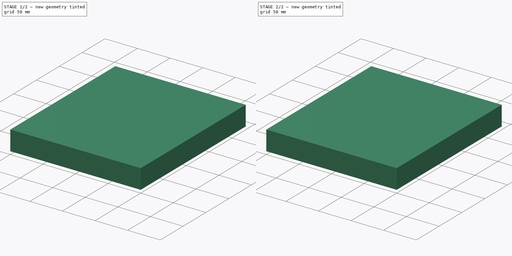
[diagram: build sequence overview — one tinted view per stage of 2, left to right]
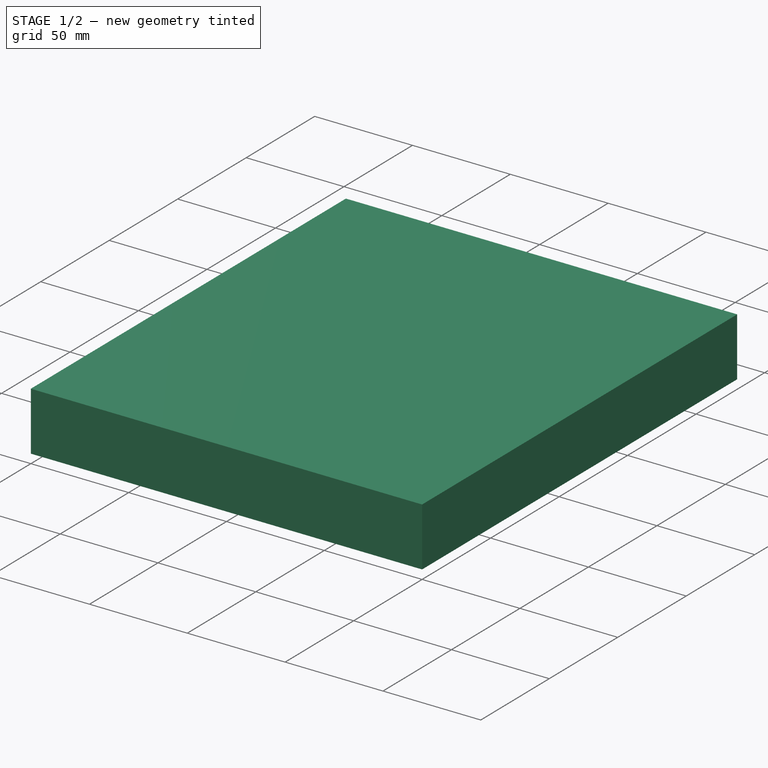
[diagram: stage 1 of 2 — iso view after this stage's code; geometry added in this stage tinted green]
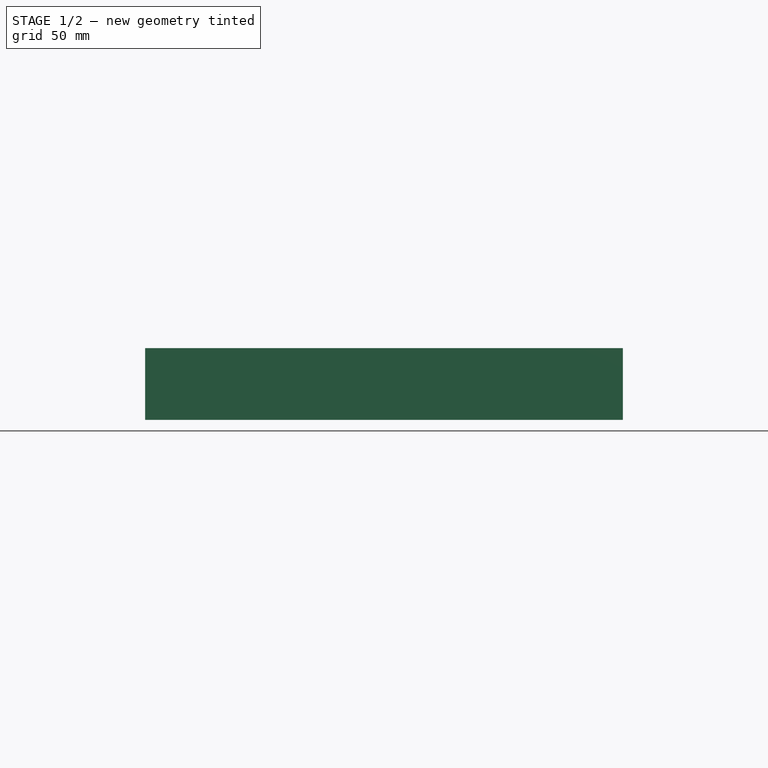
[diagram: stage 1 of 2 — front view after this stage's code; geometry added in this stage tinted green]
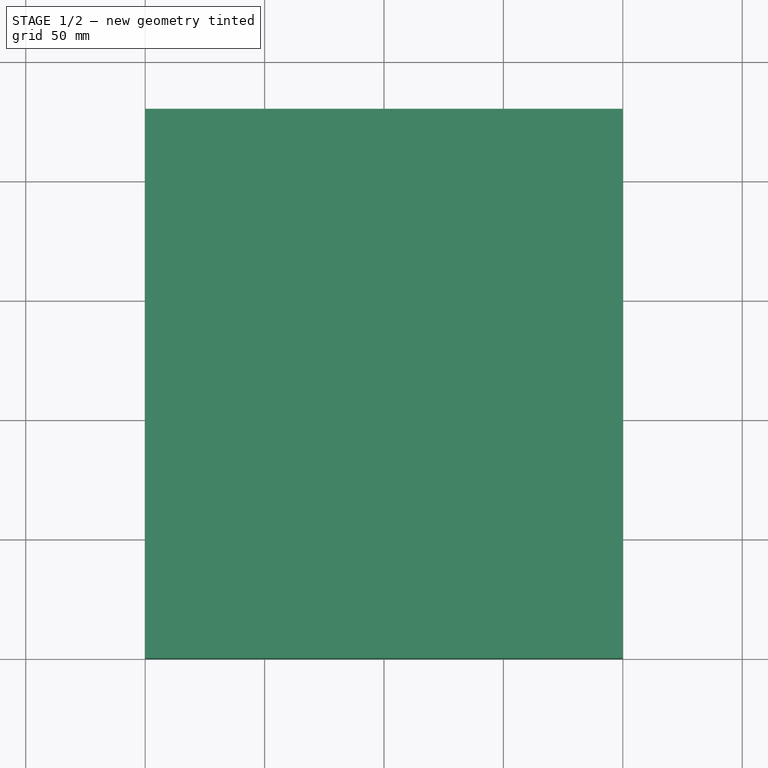
[diagram: stage 1 of 2 — top view after this stage's code; geometry added in this stage tinted green]
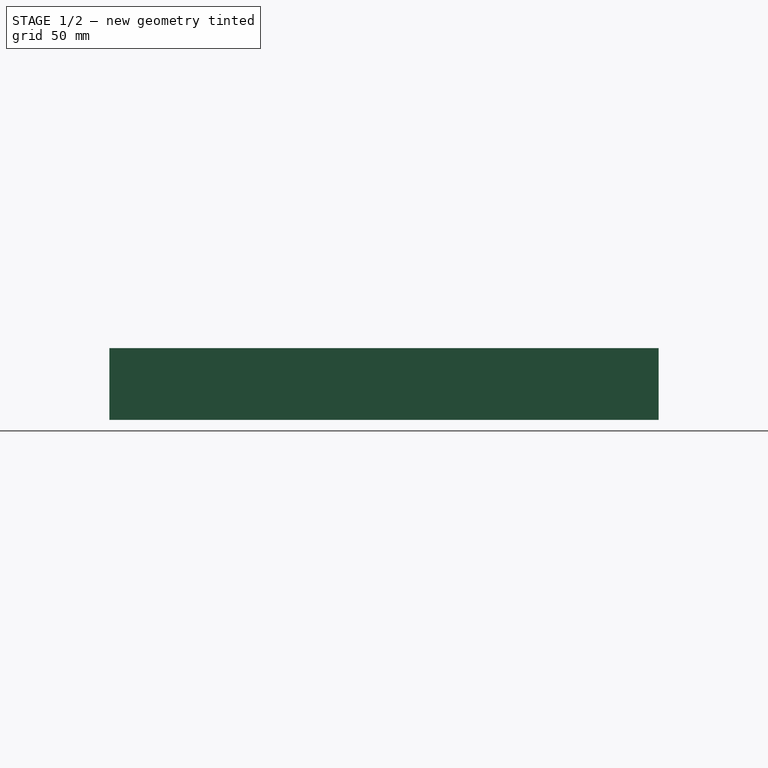
[diagram: stage 1 of 2 — right view after this stage's code; geometry added in this stage tinted green]
FCSTD DOCUMENT  (FreeCAD 0.19R24291 (Git))
Label: Binary_Clock
License: All rights reserved
LicenseURL: http://en.wikipedia.org/wiki/All_rights_reserved
objects: Part::Box×1, PartDesign::FeatureBase×1, Sketcher::SketchObject×1, PartDesign::Body×1
note: 4 computed .brp shape members not serialized (recipe doc carries the construction recipe); baked Part::Feature solids carry a one-line shape summary decoded from their .brp

FEATURE [Part::Box] Box  label="Cube"
  AttacherType = Attacher::AttachEngine3D
  Height = 30
  Length = 200
  Width = 230
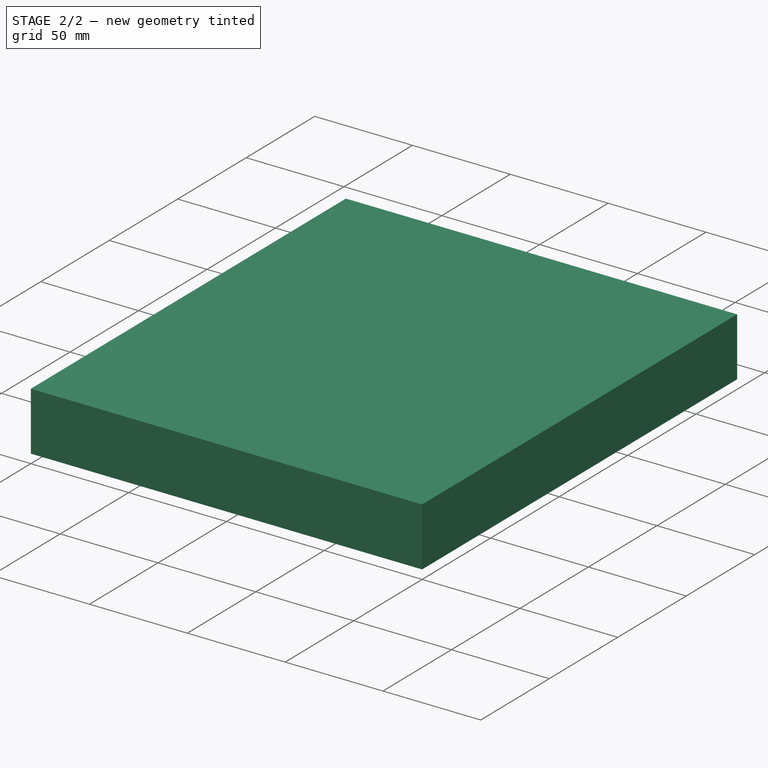
[diagram: stage 2 of 2 — iso view after this stage's code; geometry added in this stage tinted green]
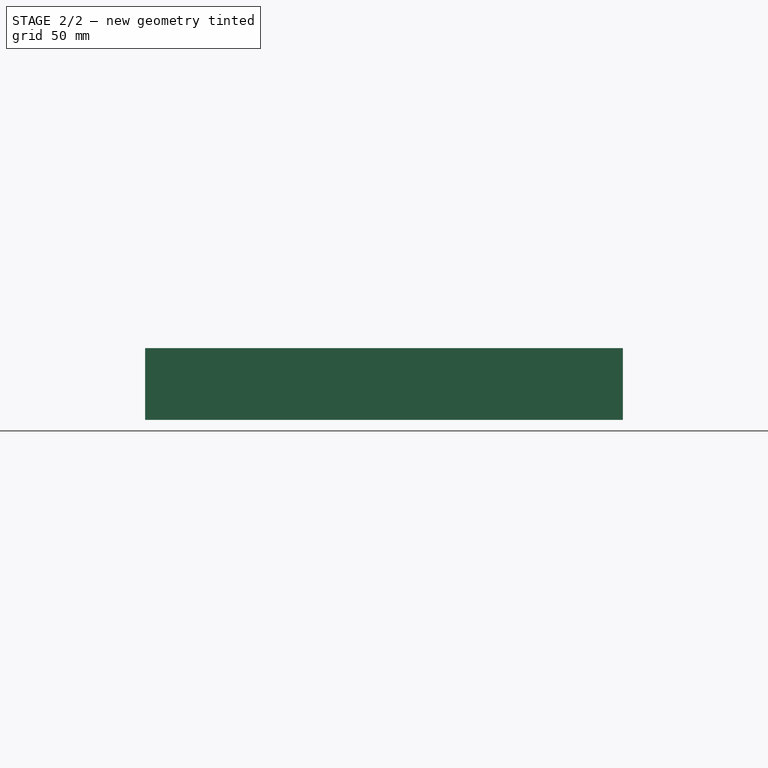
[diagram: stage 2 of 2 — front view after this stage's code; geometry added in this stage tinted green]
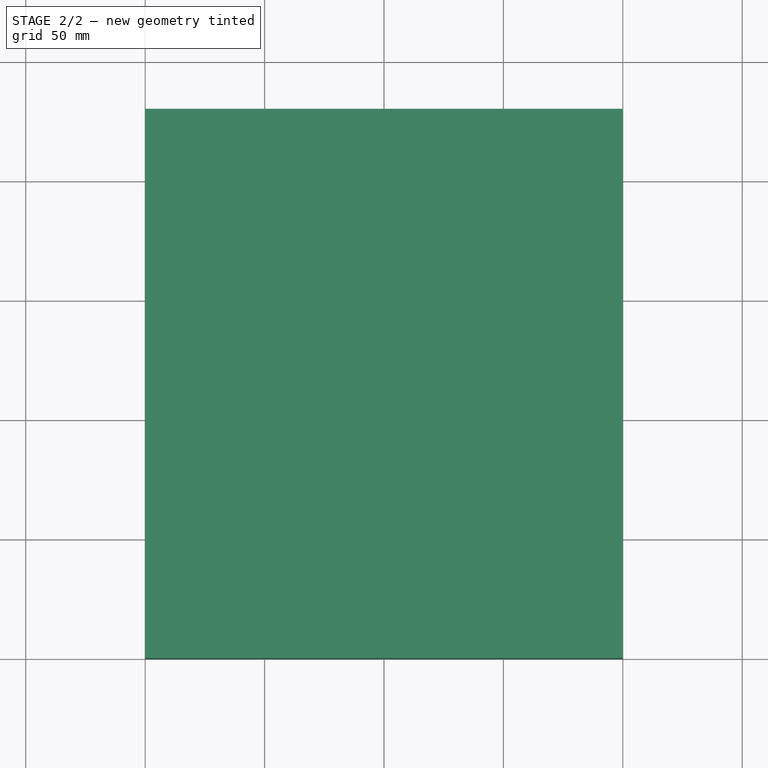
[diagram: stage 2 of 2 — top view after this stage's code; geometry added in this stage tinted green]
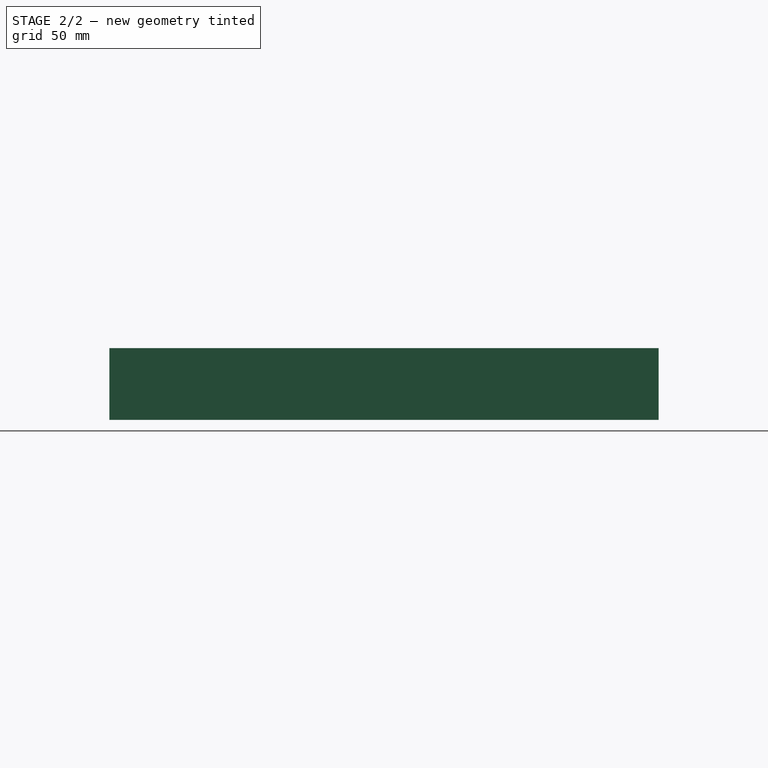
[diagram: stage 2 of 2 — right view after this stage's code; geometry added in this stage tinted green]
FEATURE [PartDesign::FeatureBase] BaseFeature
  BaseFeature = -> Box
FEATURE [Sketcher::SketchObject] Sketch
  FullyConstrained = false
  MapMode = 5
  Placement = pos=(0,0,30) rot=(0,0,1;0rad)
  Support = -> [BaseFeature]
  sketch-geometry (42):
    g0: LineSegment StartX=166.667 StartY=230 StartZ=0 EndX=166.667 EndY=0 EndZ=0
    g1: LineSegment StartX=133.333 StartY=230 StartZ=0 EndX=133.333 EndY=0 EndZ=0
    g2: LineSegment StartX=100 StartY=230 StartZ=0 EndX=100 EndY=0 EndZ=0
    g3: LineSegment StartX=66.6667 StartY=230 StartZ=0 EndX=66.6667 EndY=0 EndZ=0
    g4: LineSegment StartX=33.3333 StartY=230 StartZ=0 EndX=33.3333 EndY=0 EndZ=0
    g5: LineSegment StartX=0 StartY=230 StartZ=0 EndX=33.3333 EndY=230 EndZ=0
    g6: LineSegment StartX=33.3333 StartY=230 StartZ=0 EndX=66.6667 EndY=230 EndZ=0
    g7: LineSegment StartX=66.6667 StartY=230 StartZ=0 EndX=100 EndY=230 EndZ=0
    g8: LineSegment StartX=100 StartY=230 StartZ=0 EndX=133.333 EndY=230 EndZ=0
    g9: LineSegment StartX=133.333 StartY=230 StartZ=0 EndX=166.667 EndY=230 EndZ=0
    g10: LineSegment StartX=166.667 StartY=230 StartZ=0 EndX=200 EndY=230 EndZ=0
    g11: LineSegment StartX=200 StartY=230 StartZ=0 EndX=200 EndY=196.667 EndZ=0
    g12: LineSegment StartX=200 StartY=196.667 StartZ=0 EndX=200 EndY=163.333 EndZ=0
    g13: LineSegment StartX=200 StartY=163.333 StartZ=0 EndX=200 EndY=130 EndZ=0
    g14: LineSegment StartX=200 StartY=130 StartZ=0 EndX=200 EndY=96.6667 EndZ=0
    g15: LineSegment StartX=200 StartY=96.6667 StartZ=0 EndX=200 EndY=63.3333 EndZ=0
    g16: LineSegment StartX=200 StartY=63.3333 StartZ=0 EndX=200 EndY=30 EndZ=0
    g17: LineSegment StartX=200 StartY=30 StartZ=0 EndX=200 EndY=0 EndZ=0
    g18: LineSegment StartX=200 StartY=196.667 StartZ=0 EndX=0 EndY=196.667 EndZ=0
    g19: LineSegment StartX=200 StartY=163.333 StartZ=0 EndX=0 EndY=163.333 EndZ=0
    g20: LineSegment StartX=200 StartY=130 StartZ=0 EndX=0 EndY=130 EndZ=0
    g21: LineSegment StartX=200 StartY=96.6667 StartZ=0 EndX=0 EndY=96.6667 EndZ=0
    g22: LineSegment StartX=200 StartY=63.3333 StartZ=0 EndX=0 EndY=63.3333 EndZ=0
    g23: LineSegment StartX=200 StartY=30 StartZ=0 EndX=0 EndY=30 EndZ=0
    g24: GeomPoint X=166.667 Y=196.667 Z=0
    g25: LineSegment StartX=166.667 StartY=196.667 StartZ=0 EndX=157.735 EndY=230 EndZ=0
    g26: LineSegment StartX=166.667 StartY=196.667 StartZ=0 EndX=175.598 EndY=230 EndZ=0
    g27: LineSegment StartX=200 StartY=230 StartZ=0 EndX=191.068 EndY=196.667 EndZ=0
    g28: GeomPoint X=166.667 Y=130 Z=0
    g29: GeomPoint X=166.667 Y=163.333 Z=0
    g30: LineSegment StartX=175.598 StartY=230 StartZ=0 EndX=175.598 EndY=30 EndZ=0
    g31: LineSegment StartX=191.068 StartY=230 StartZ=0 EndX=191.068 EndY=30 EndZ=0
    g32: LineSegment StartX=157.735 StartY=230 StartZ=0 EndX=157.735 EndY=30 EndZ=0
    g33: LineSegment StartX=142.049 StartY=230 StartZ=0 EndX=142.049 EndY=30 EndZ=0
    g34: LineSegment StartX=121.125 StartY=230 StartZ=0 EndX=121.125 EndY=30 EndZ=0
    g35: LineSegment StartX=110.066 StartY=230 StartZ=0 EndX=110.066 EndY=30 EndZ=0
    g36: LineSegment StartX=89.4788 StartY=230 StartZ=0 EndX=89.4788 EndY=30 EndZ=0
    g37: LineSegment StartX=74.5062 StartY=230 StartZ=0 EndX=74.5062 EndY=30 EndZ=0
    g38: LineSegment StartX=57.662 StartY=230 StartZ=0 EndX=57.662 EndY=30 EndZ=0
    g39: LineSegment StartX=43.438 StartY=230 StartZ=0 EndX=43.438 EndY=30 EndZ=0
    g40: GeomPoint X=142.049 Y=196.667 Z=0
    g41: GeomPoint X=121.125 Y=196.667 Z=0
  constraints (118):
    c: PointOnObject(g5,g-2)
    c: Horizontal(g5)
    c: DistanceY(g-1,g5) = 230
    c: Coincident(g4,g5)
    c: Coincident(g6,g4)
    c: Coincident(g6,g3)
    c: Horizontal(g6)
    c: Coincident(g7,g3)
    c: Coincident(g7,g2)
    c: Horizontal(g7)
    c: Coincident(g8,g2)
    c: Coincident(g8,g1)
    c: Horizontal(g8)
    c: Coincident(g9,g1)
    c: Coincident(g9,g0)
    c: Horizontal(g9)
    c: Coincident(g10,g0)
    c: Horizontal(g10)
    c: Coincident(g11,g10)
    c: Vertical(g11)
    c: Coincident(g12,g11)
    c: Vertical(g12)
    c: Coincident(g13,g12)
    c: Vertical(g13)
    c: Coincident(g14,g13)
    c: Vertical(g14)
    c: Coincident(g15,g14)
    c: Vertical(g15)
    c: Coincident(g16,g15)
    c: Vertical(g16)
    c: Coincident(g17,g16)
    c: PointOnObject(g17,g-1)
    c: Vertical(g17)
    c: DistanceY(g17,g17) = 30
    c: Equal(g16,g15)
    c: Equal(g15,g14)
    c: Equal(g14,g13)
    c: Equal(g13,g12)
    c: Equal(g12,g11)
    c: Equal(g10,g9)
    c: Equal(g9,g8)
    c: Equal(g8,g7)
    c: Equal(g7,g6)
    c: Equal(g6,g5)
    c: Vertical(g4)
    c: Vertical(g3)
    c: Vertical(g2)
    c: Vertical(g1)
    c: Vertical(g0)
    c: Coincident(g18,g11)
    c: PointOnObject(g18,g-2)
    c: Horizontal(g18)
    c: Coincident(g19,g12)
    c: PointOnObject(g19,g-2)
    c: Horizontal(g19)
    c: Coincident(g20,g13)
    c: PointOnObject(g20,g-2)
    c: Horizontal(g20)
    c: Coincident(g21,g14)
    c: PointOnObject(g21,g-2)
    c: Horizontal(g21)
    c: Coincident(g22,g15)
    c: PointOnObject(g22,g-2)
    c: Horizontal(g22)
    c: Coincident(g23,g16)
    c: PointOnObject(g23,g-2)
    c: Horizontal(g23)
    c: PointOnObject(g24,g18)
    c: PointOnObject(g24,g0)
    c: Coincident(g25,g24)
    c: PointOnObject(g25,g9)
    c: Coincident(g26,g24)
    c: PointOnObject(g26,g10)
    c: DistanceX(g5,g10) = 200
    c: Angle(g0,g26) = 2.87979
    c: Angle(g25,g0) = 2.87979
    c: Coincident(g27,g10)
    c: PointOnObject(g27,g18)
    c: Angle(g27,g11) = 0.261799
    c: PointOnObject(g28,g20)
    c: PointOnObject(g29,g19)
    c: PointOnObject(g28,g0)
    c: PointOnObject(g29,g0)
    c: Coincident(g30,g26)
    c: PointOnObject(g30,g23)
    c: Vertical(g30)
    c: PointOnObject(g31,g10)
    c: PointOnObject(g31,g23)
    c: Vertical(g31)
    c: PointOnObject(g27,g31)
    c: Coincident(g32,g25)
    c: PointOnObject(g32,g23)
    c: Vertical(g32)
    c: PointOnObject(g33,g9)
    c: PointOnObject(g33,g23)
    c: Vertical(g33)
    c: PointOnObject(g34,g8)
    c: PointOnObject(g34,g23)
    c: Vertical(g34)
    c: PointOnObject(g35,g8)
    c: PointOnObject(g35,g23)
    c: Vertical(g35)
    c: PointOnObject(g36,g7)
    c: PointOnObject(g36,g23)
    c: Vertical(g36)
    c: PointOnObject(g37,g7)
    c: PointOnObject(g37,g23)
    c: Vertical(g37)
    c: PointOnObject(g38,g6)
    c: PointOnObject(g38,g23)
    c: Vertical(g38)
    c: PointOnObject(g39,g6)
    c: PointOnObject(g39,g23)
    c: Vertical(g39)
    c: PointOnObject(g40,g18)
    c: PointOnObject(g41,g18)
    c: PointOnObject(g40,g33)
    c: PointOnObject(g41,g34)
FEATURE [PartDesign::Body] Body
  BaseFeature = -> Box
  Group = -> [BaseFeature,Sketch]
  Origin = -> Origin
  Tip = -> BaseFeature
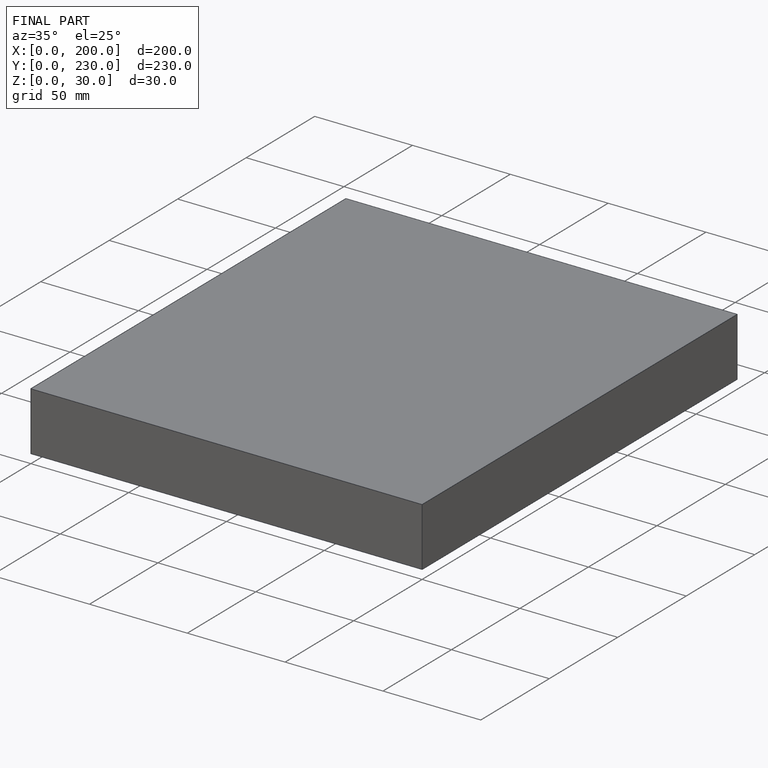
[diagram: finished part — iso view with bounding-box wireframe]
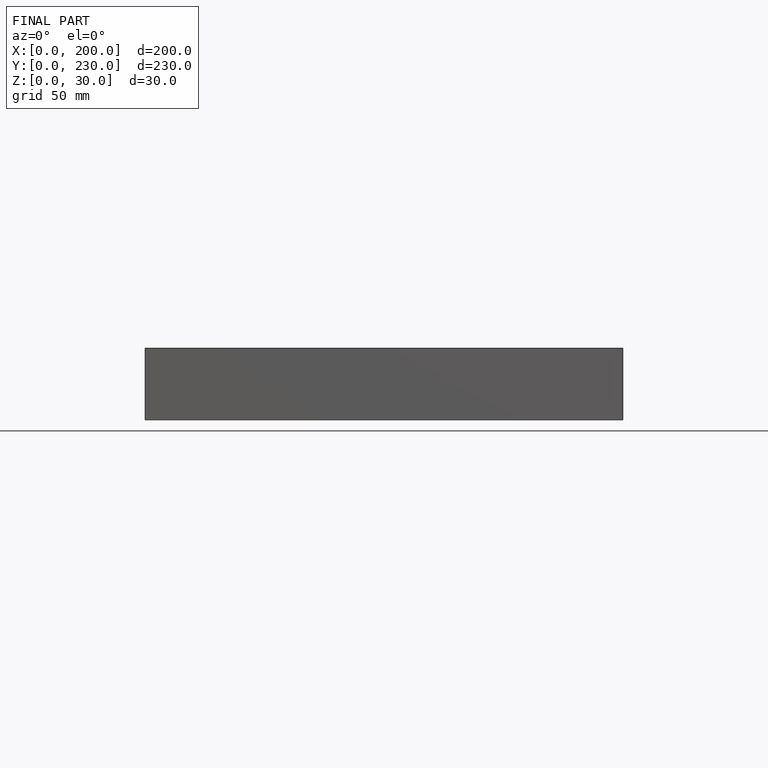
[diagram: finished part — front view with bounding-box wireframe]
